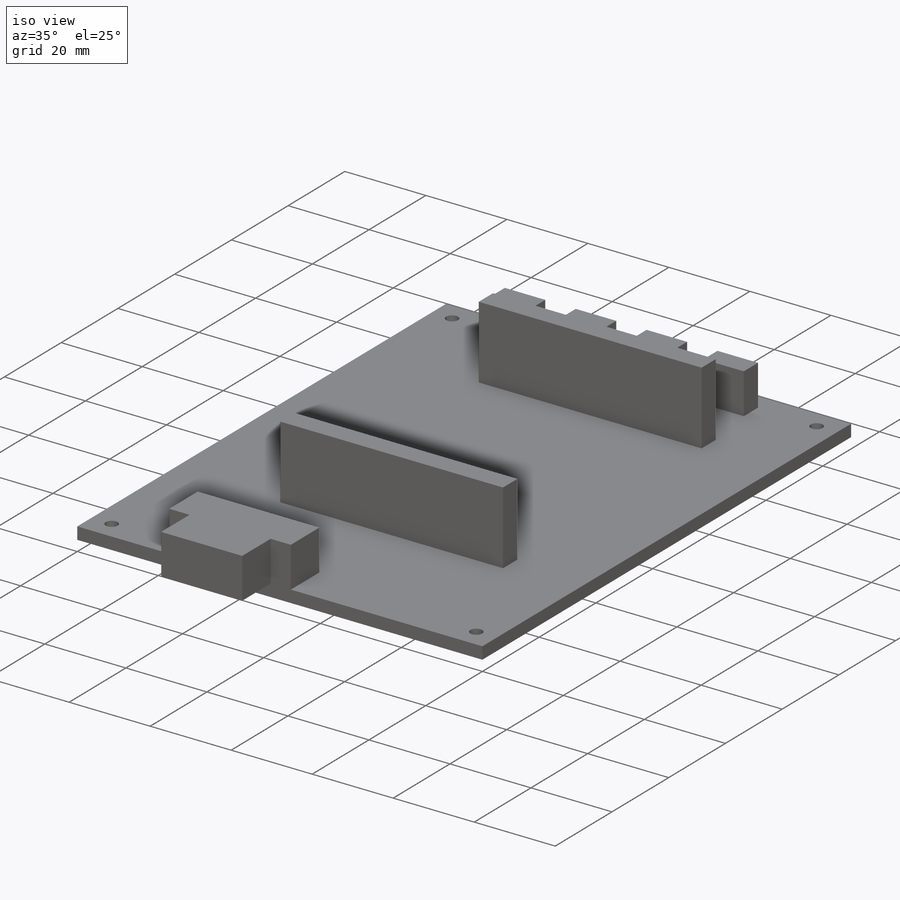
[diagram: iso view]
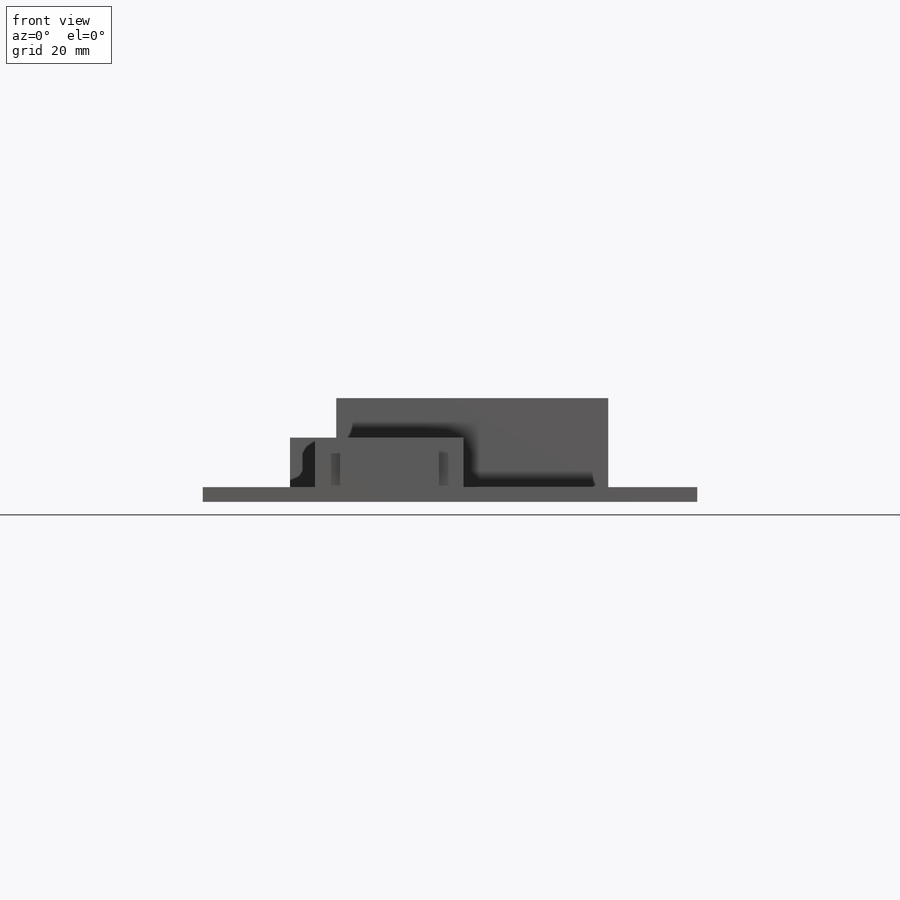
[diagram: front view]
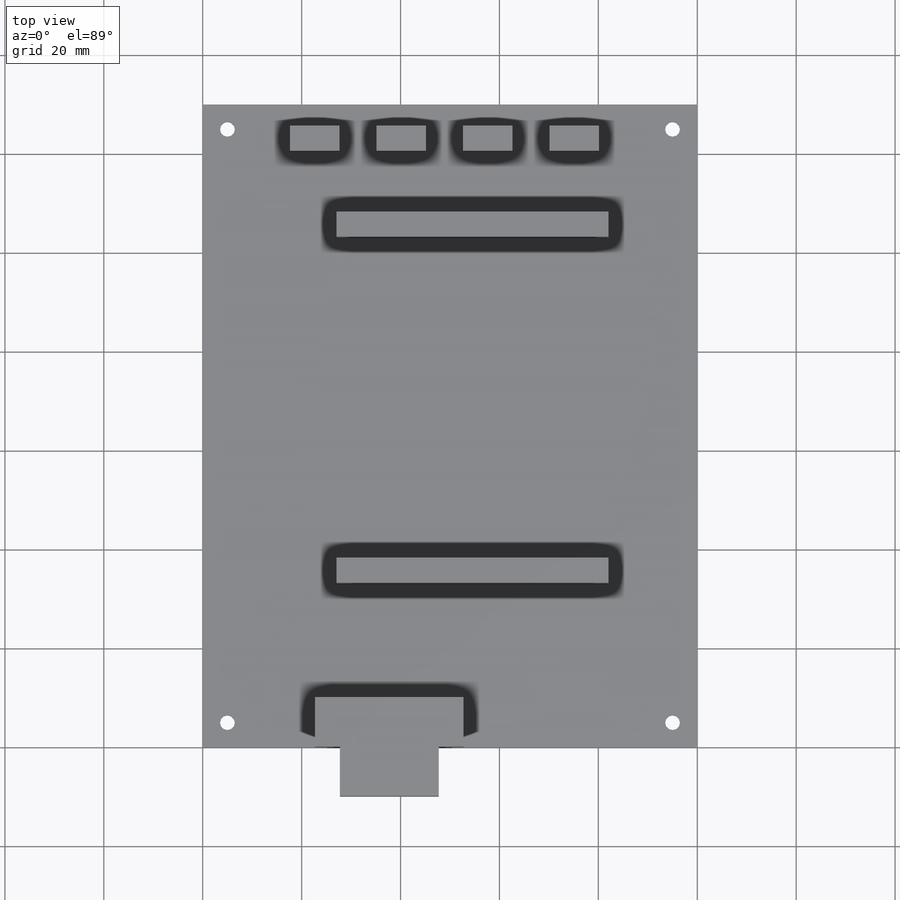
[diagram: top view]
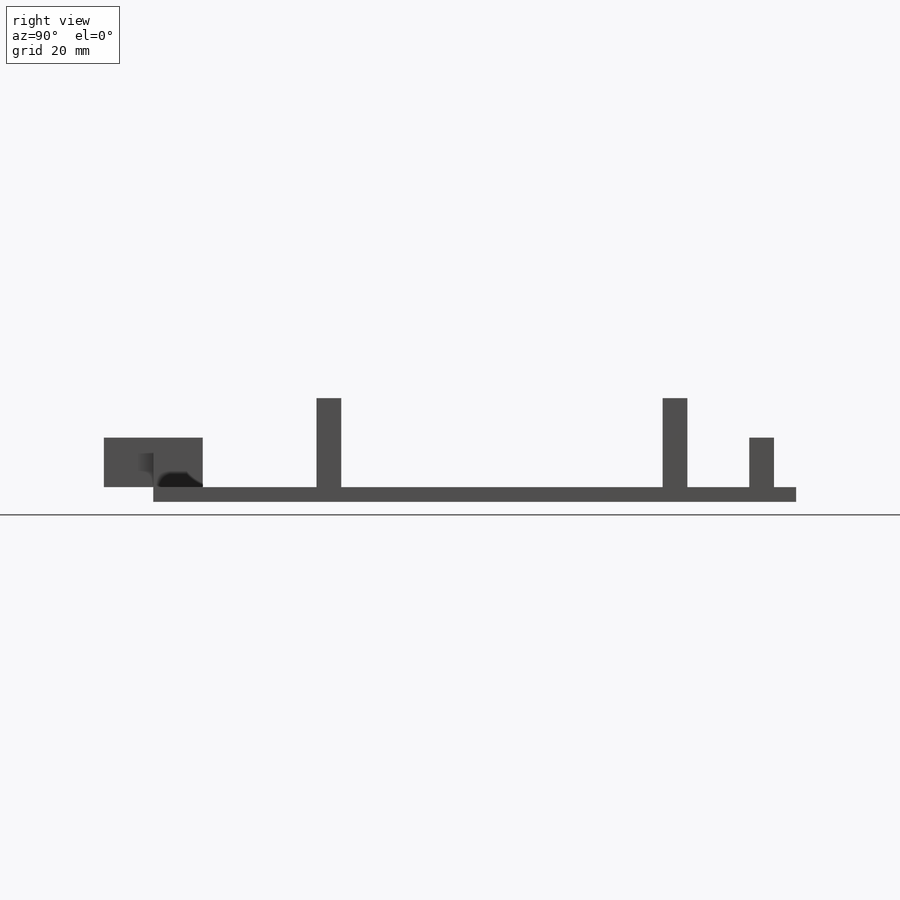
[diagram: right view]
SOLIDWORKS PART (.sldprt)
format: sldprt  version: not decoded by parser v0  size: 186,880 bytes
history: native  units: mm
features: sketch x4, extrude x4, plane x3, material x1 (+9 scaffold rows collapsed)
feature tree (21):
  scaffold x9  (default folders/planes/origin — collapsed)
  material  "Material <not specified>"
  plane  "Face"
  plane  "Dessus"
  plane  "Droite"
  sketch  "Esquisse1"  dims[D3=3.0mm D1=130.0mm D2=100.0mm D4=5.0mm D5=5.0mm]
  extrude  "Extrusion1"  Depth=3mm
  sketch  "Esquisse2"  dims[D1=65.0mm D2=5.0mm D3=22.0mm D4=55.0mm D5=18.0mm]
  extrude  "Extrusion2"  Depth=18mm
  sketch  "Esquisse3"  dims[D1=10.0mm D2=10.0mm D3=5.0mm D4=15.0mm D5=10.0mm]
  extrude  "Extrusion3"  Depth=10mm
  sketch  "Esquisse4"  dims[D1=10.0mm D2=5.0mm D3=7.5mm D4=7.5mm D5=7.5mm]
  extrude  "Extrusion4"  Depth=10mm
decode coverage: 8 of 8 modeling features carry decoded parameters
note: suppression state not decoded; provenance and decode notes live in map.json
